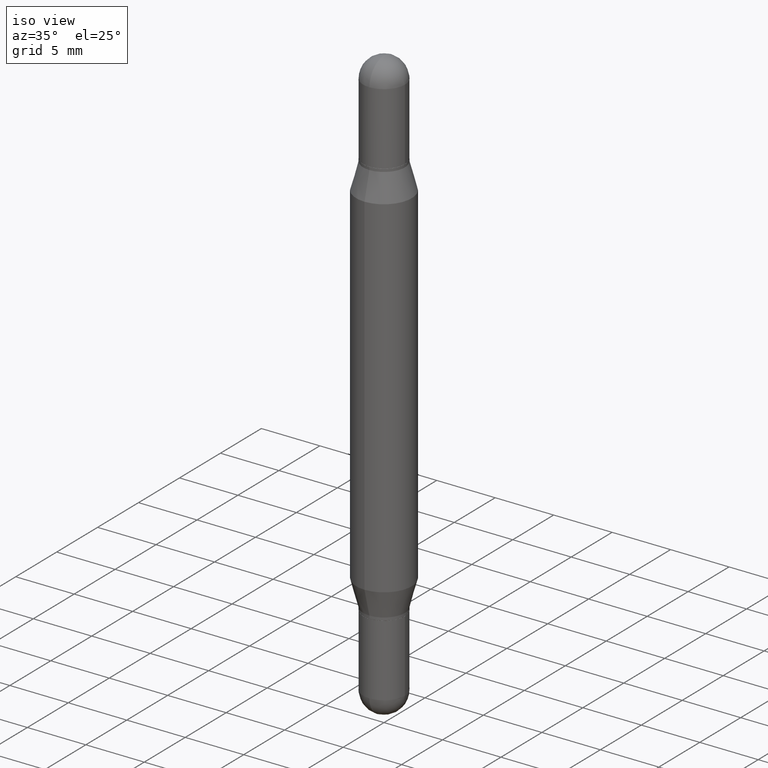
[diagram: clean part render]
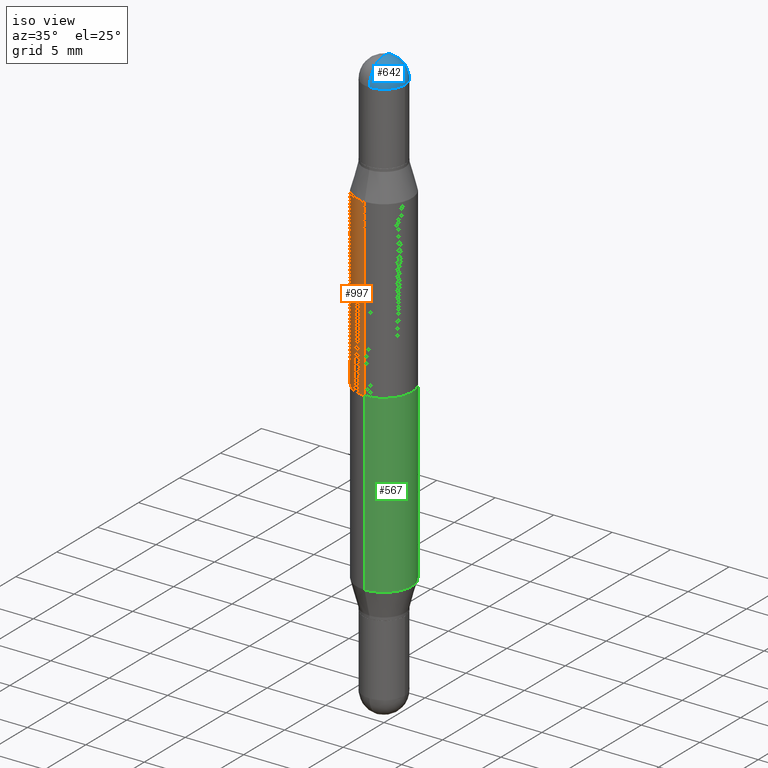
[diagram: same view with three faces highlighted in distinct colors, each labeled with its STEP entity id]
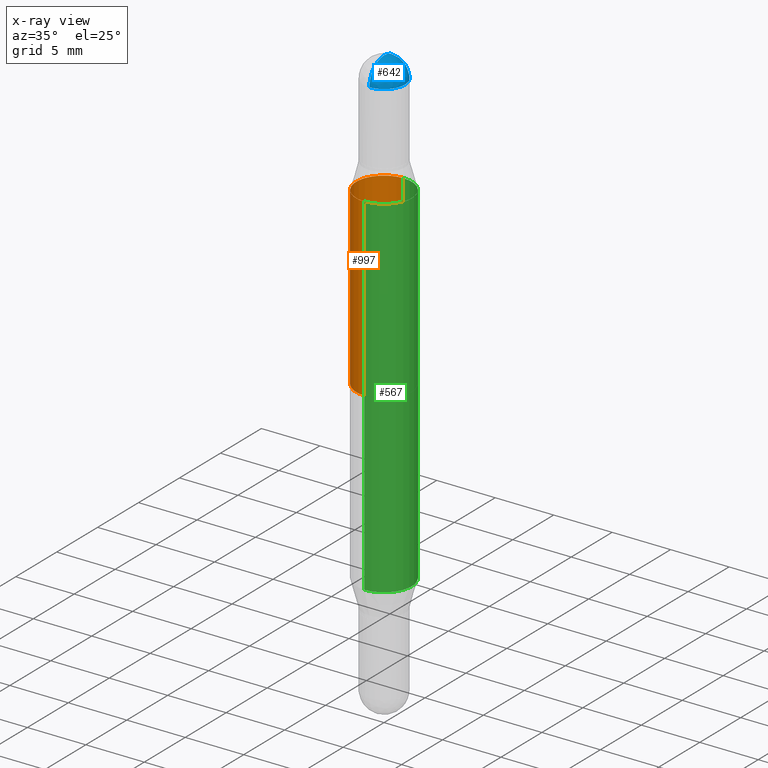
[diagram: x-ray of the same camera — body ghosted, the three highlighted faces saturated]
A machine part, iso view with three faces highlighted in distinct colors.
The next image is the same camera in x-ray (body ghosted, the three faces saturated) — at least one of them is partly hidden behind the body in this view.
Their STEP definitions:

[orange] entity #997 — the highlighted cylindrical surface (edge-blend (fillet) strip) has radius 2.3813 mm, axis along (-0, -0, -1).
#4 = DIRECTION ( 'NONE',  ( -2.445089247123292658E-29, -3.479070916798106850E-15, -1.000000000000000000 ) ) ;
#15 = VERTEX_POINT ( 'NONE', #756 ) ;
#43 = CARTESIAN_POINT ( 'NONE',  ( 2.445089247123292378E-29, -3.492024889022866198E-15, -1.000000000000000000 ) ) ;
#85 = CIRCLE ( 'NONE', #806, 0.09375000000000002776 ) ;
#104 = AXIS2_PLACEMENT_3D ( 'NONE', #667, #503, #577 ) ;
#111 = DIRECTION ( 'NONE',  ( 2.445089247123292378E-29, 3.479070916798107244E-15, 1.000000000000000000 ) ) ;
#182 = CARTESIAN_POINT ( 'NONE',  ( 6.431716872910811826E-16, 0.09374999999999306111, -2.000000000000000444 ) ) ;
#232 = EDGE_CURVE ( 'NONE', #597, #420, #862, .T. ) ;
#276 = EDGE_CURVE ( 'NONE', #15, #768, #619, .T. ) ;
#365 = VECTOR ( 'NONE', #4, 39.37007874015748143 ) ;
#420 = VERTEX_POINT ( 'NONE', #623 ) ;
#476 = CARTESIAN_POINT ( 'NONE',  ( -6.546527510330486527E-16, -0.09375000000000147105, -0.4095165914374884752 ) ) ;
#503 = DIRECTION ( 'NONE',  ( -2.445089247123292378E-29, -3.479070916798107244E-15, -1.000000000000000000 ) ) ;
#534 = DIRECTION ( 'NONE',  ( -2.445089247123292658E-29, -3.479070916798106850E-15, -1.000000000000000000 ) ) ;
#543 = EDGE_CURVE ( 'NONE', #15, #597, #85, .T. ) ;
#548 = CARTESIAN_POINT ( 'NONE',  ( 6.431716872911129342E-16, 0.09374999999999653055, -1.000000000000000222 ) ) ;
#551 = DIRECTION ( 'NONE',  ( -0.000000000000000000, -3.485547902910486918E-15, -1.000000000000000000 ) ) ;
#560 = AXIS2_PLACEMENT_3D ( 'NONE', #43, #551, #993 ) ;
#568 = DIRECTION ( 'NONE',  ( -6.982962677686265922E-15, -1.000000000000000000, 3.642463991552350169E-15 ) ) ;
#577 = DIRECTION ( 'NONE',  ( -6.982962677686265922E-15, -1.000000000000000000, 2.913971193241879977E-15 ) ) ;
#583 = ORIENTED_EDGE ( 'NONE', *, *, #276, .T. ) ;
#588 = CYLINDRICAL_SURFACE ( 'NONE', #104, 0.09375000000000002776 ) ;
#597 = VERTEX_POINT ( 'NONE', #476 ) ;
#619 = LINE ( 'NONE', #182, #1011 ) ;
#623 = CARTESIAN_POINT ( 'NONE',  ( -6.546527510330631480E-16, -0.09375000000000352496, -0.9999999999999996669 ) ) ;
#667 = CARTESIAN_POINT ( 'NONE',  ( 0.000000000000000000, -6.971095805820973837E-15, -2.000000000000000000 ) ) ;
#756 = CARTESIAN_POINT ( 'NONE',  ( 6.431716872911200340E-16, 0.09374999999999857059, -0.4095165914374891414 ) ) ;
#768 = VERTEX_POINT ( 'NONE', #548 ) ;
#806 = AXIS2_PLACEMENT_3D ( 'NONE', #827, #111, #568 ) ;
#809 = CIRCLE ( 'NONE', #560, 0.09375000000000002776 ) ;
#814 = ORIENTED_EDGE ( 'NONE', *, *, #933, .F. ) ;
#827 = CARTESIAN_POINT ( 'NONE',  ( 3.888873880004198639E-29, -1.437691235441220230E-15, -0.4095165914374888083 ) ) ;
#842 = EDGE_LOOP ( 'NONE', ( #982, #583, #814, #1050 ) ) ;
#862 = LINE ( 'NONE', #1031, #365 ) ;
#933 = EDGE_CURVE ( 'NONE', #420, #768, #809, .T. ) ;
#982 = ORIENTED_EDGE ( 'NONE', *, *, #543, .F. ) ;
#993 = DIRECTION ( 'NONE',  ( 0.000000000000000000, 1.000000000000000000, -2.913971193241879977E-15 ) ) ;
#997 = ADVANCED_FACE ( 'NONE', ( #1095 ), #588, .T. ) ;
#1011 = VECTOR ( 'NONE', #534, 39.37007874015748143 ) ;
#1031 = CARTESIAN_POINT ( 'NONE',  ( -6.546527510330876027E-16, -0.09375000000000699441, -1.999999999999999778 ) ) ;
#1050 = ORIENTED_EDGE ( 'NONE', *, *, #232, .F. ) ;
#1095 = FACE_OUTER_BOUND ( 'NONE', #842, .T. ) ;

[blue] entity #642 — the highlighted spherical surface has radius 1.7856 mm.
#45 = CARTESIAN_POINT ( 'NONE',  ( 4.755767650741496407E-29, -2.038606959344970987E-16, -0.07030000000000007077 ) ) ;
#53 = VERTEX_POINT ( 'NONE', #681 ) ;
#54 = CIRCLE ( 'NONE', #1068, 0.07030000000000004301 ) ;
#69 = ORIENTED_EDGE ( 'NONE', *, *, #261, .T. ) ;
#94 = DIRECTION ( 'NONE',  ( 1.000000000000000000, -6.982962677686268288E-15, 0.000000000000000000 ) ) ;
#128 = CARTESIAN_POINT ( 'NONE',  ( 4.719021155295457704E-29, -2.564837688938590811E-16, -0.07030000000000007077 ) ) ;
#157 = DIRECTION ( 'NONE',  ( 1.000000000000000000, -6.860497997771530774E-15, -5.827999781331232286E-31 ) ) ;
#224 = AXIS2_PLACEMENT_3D ( 'NONE', #256, #1030, #1116 ) ;
#226 = EDGE_CURVE ( 'NONE', #53, #268, #853, .T. ) ;
#249 = EDGE_LOOP ( 'NONE', ( #627, #563, #683, #69 ) ) ;
#256 = CARTESIAN_POINT ( 'NONE',  ( 4.755767650741496407E-29, -2.038606959344970987E-16, -0.07030000000000007077 ) ) ;
#261 = EDGE_CURVE ( 'NONE', #320, #893, #870, .T. ) ;
#268 = VERTEX_POINT ( 'NONE', #774 ) ;
#320 = VERTEX_POINT ( 'NONE', #949 ) ;
#368 = DIRECTION ( 'NONE',  ( -6.982962677686266711E-15, -1.000000000000000000, 0.000000000000000000 ) ) ;
#386 = CIRCLE ( 'NONE', #928, 0.07030000000000002913 ) ;
#409 = FACE_OUTER_BOUND ( 'NONE', #249, .T. ) ;
#410 = DIRECTION ( 'NONE',  ( 2.445468806185136597E-29, 3.479614466977828254E-15, 1.000000000000000000 ) ) ;
#424 = EDGE_CURVE ( 'NONE', #53, #893, #386, .T. ) ;
#477 = CARTESIAN_POINT ( 'NONE',  ( 4.909022762413921804E-16, 0.07029999999999980709, -0.07030000000000032057 ) ) ;
#497 = AXIS2_PLACEMENT_3D ( 'NONE', #530, #410, #94 ) ;
#530 = CARTESIAN_POINT ( 'NONE',  ( 4.719021155295457704E-29, -2.564837688938590811E-16, -0.07030000000000007077 ) ) ;
#563 = ORIENTED_EDGE ( 'NONE', *, *, #226, .T. ) ;
#585 = EDGE_CURVE ( 'NONE', #268, #320, #54, .T. ) ;
#599 = DIRECTION ( 'NONE',  ( 6.860497997771531562E-15, 1.000000000000000000, 0.000000000000000000 ) ) ;
#627 = ORIENTED_EDGE ( 'NONE', *, *, #424, .F. ) ;
#642 = ADVANCED_FACE ( 'NONE', ( #409 ), #693, .T. ) ;
#650 = DIRECTION ( 'NONE',  ( -1.000000000000000000, 6.982962677686265922E-15, 1.566701062080016245E-31 ) ) ;
#681 = CARTESIAN_POINT ( 'NONE',  ( 4.930690017322777259E-29, 4.506083459304730775E-17, -3.414809992080329023E-17 ) ) ;
#683 = ORIENTED_EDGE ( 'NONE', *, *, #585, .T. ) ;
#693 = SPHERICAL_SURFACE ( 'NONE', #224, 0.07030000000000002913 ) ;
#774 = CARTESIAN_POINT ( 'NONE',  ( -4.822930092432915309E-16, -0.07030000000000026505, -0.07029999999999982097 ) ) ;
#845 = DIRECTION ( 'NONE',  ( 1.000000000000000000, -6.982962677686268288E-15, 0.000000000000000000 ) ) ;
#853 = CIRCLE ( 'NONE', #890, 0.07030000000000002913 ) ;
#870 = CIRCLE ( 'NONE', #497, 0.07030000000000004301 ) ;
#890 = AXIS2_PLACEMENT_3D ( 'NONE', #1055, #157, #599 ) ;
#893 = VERTEX_POINT ( 'NONE', #477 ) ;
#928 = AXIS2_PLACEMENT_3D ( 'NONE', #45, #650, #368 ) ;
#949 = CARTESIAN_POINT ( 'NONE',  ( 0.07030000000000004301, -1.167897453469473342E-15, -0.07030000000000007077 ) ) ;
#1006 = DIRECTION ( 'NONE',  ( 2.445468806185136597E-29, 3.479614466977828254E-15, 1.000000000000000000 ) ) ;
#1030 = DIRECTION ( 'NONE',  ( 1.000000000000000000, -6.982962677686265922E-15, -1.566701062080009238E-31 ) ) ;
#1055 = CARTESIAN_POINT ( 'NONE',  ( 4.755767650741496407E-29, -2.038606959344970987E-16, -0.07030000000000007077 ) ) ;
#1068 = AXIS2_PLACEMENT_3D ( 'NONE', #128, #1006, #845 ) ;
#1116 = DIRECTION ( 'NONE',  ( 6.982962677686265922E-15, 1.000000000000000000, -3.521674600651831280E-15 ) ) ;

[green] entity #567 — the highlighted cylindrical surface (edge-blend (fillet) strip) has radius 2.3813 mm, axis along (-0, -0, -1).
#1 = VERTEX_POINT ( 'NONE', #388 ) ;
#13 = ORIENTED_EDGE ( 'NONE', *, *, #363, .T. ) ;
#29 = DIRECTION ( 'NONE',  ( 2.445089247123292378E-29, 3.479070916798107244E-15, 1.000000000000000000 ) ) ;
#109 = CARTESIAN_POINT ( 'NONE',  ( 6.431716872911200340E-16, 0.09374999999999857059, -0.4095165914374891414 ) ) ;
#124 = DIRECTION ( 'NONE',  ( -2.445089247123292378E-29, -3.479070916798107244E-15, -1.000000000000000000 ) ) ;
#154 = ORIENTED_EDGE ( 'NONE', *, *, #1078, .T. ) ;
#168 = AXIS2_PLACEMENT_3D ( 'NONE', #1053, #904, #467 ) ;
#241 = AXIS2_PLACEMENT_3D ( 'NONE', #741, #124, #290 ) ;
#274 = DIRECTION ( 'NONE',  ( -2.445089247123292658E-29, -3.479070916798106850E-15, -1.000000000000000000 ) ) ;
#279 = DIRECTION ( 'NONE',  ( -6.982962677686265922E-15, -1.000000000000000000, 3.642463991552350169E-15 ) ) ;
#290 = DIRECTION ( 'NONE',  ( -6.982962677686265922E-15, -1.000000000000000000, 2.913971193241879977E-15 ) ) ;
#297 = LINE ( 'NONE', #822, #691 ) ;
#300 = CIRCLE ( 'NONE', #441, 0.09375000000000002776 ) ;
#363 = EDGE_CURVE ( 'NONE', #433, #1083, #572, .T. ) ;
#371 = CYLINDRICAL_SURFACE ( 'NONE', #241, 0.09375000000000002776 ) ;
#388 = CARTESIAN_POINT ( 'NONE',  ( -6.546527510330486527E-16, -0.09375000000000147105, -0.4095165914374884752 ) ) ;
#433 = VERTEX_POINT ( 'NONE', #1059 ) ;
#441 = AXIS2_PLACEMENT_3D ( 'NONE', #1057, #29, #279 ) ;
#454 = FACE_OUTER_BOUND ( 'NONE', #854, .T. ) ;
#467 = DIRECTION ( 'NONE',  ( -6.982962677686265922E-15, -1.000000000000000000, 2.913971193241879977E-15 ) ) ;
#472 = LINE ( 'NONE', #902, #761 ) ;
#482 = VERTEX_POINT ( 'NONE', #109 ) ;
#525 = ORIENTED_EDGE ( 'NONE', *, *, #959, .F. ) ;
#567 = ADVANCED_FACE ( 'NONE', ( #454 ), #371, .T. ) ;
#572 = CIRCLE ( 'NONE', #168, 0.09375000000000002776 ) ;
#691 = VECTOR ( 'NONE', #918, 39.37007874015748143 ) ;
#741 = CARTESIAN_POINT ( 'NONE',  ( 0.000000000000000000, -6.971095805820973837E-15, -2.000000000000000000 ) ) ;
#748 = ORIENTED_EDGE ( 'NONE', *, *, #936, .F. ) ;
#761 = VECTOR ( 'NONE', #274, 39.37007874015748143 ) ;
#822 = CARTESIAN_POINT ( 'NONE',  ( -6.546527510330876027E-16, -0.09375000000000699441, -1.999999999999999778 ) ) ;
#854 = EDGE_LOOP ( 'NONE', ( #525, #748, #154, #13 ) ) ;
#902 = CARTESIAN_POINT ( 'NONE',  ( 6.431716872910811826E-16, 0.09374999999999306111, -2.000000000000000444 ) ) ;
#904 = DIRECTION ( 'NONE',  ( -2.445089247123292378E-29, 3.492024889022866592E-15, 1.000000000000000000 ) ) ;
#918 = DIRECTION ( 'NONE',  ( -2.445089247123292658E-29, -3.479070916798106850E-15, -1.000000000000000000 ) ) ;
#924 = CARTESIAN_POINT ( 'NONE',  ( 6.431716872911056373E-16, 0.09374999999999447664, -1.590483408562511469 ) ) ;
#936 = EDGE_CURVE ( 'NONE', #1, #482, #300, .T. ) ;
#959 = EDGE_CURVE ( 'NONE', #482, #1083, #472, .T. ) ;
#1053 = CARTESIAN_POINT ( 'NONE',  ( 3.888873880004198639E-29, -5.554007648278214169E-15, -1.590483408562511247 ) ) ;
#1057 = CARTESIAN_POINT ( 'NONE',  ( 3.888873880004198639E-29, -1.437691235441220230E-15, -0.4095165914374888083 ) ) ;
#1059 = CARTESIAN_POINT ( 'NONE',  ( -6.546527510330486527E-16, -0.09375000000000557887, -1.590483408562510803 ) ) ;
#1078 = EDGE_CURVE ( 'NONE', #1, #433, #297, .T. ) ;
#1083 = VERTEX_POINT ( 'NONE', #924 ) ;